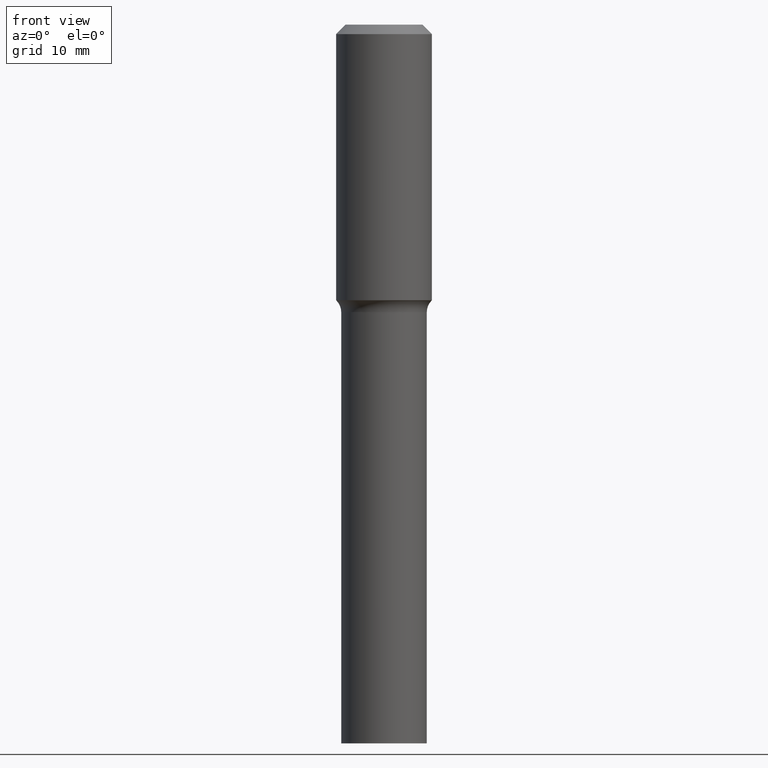
[diagram: clean part render]
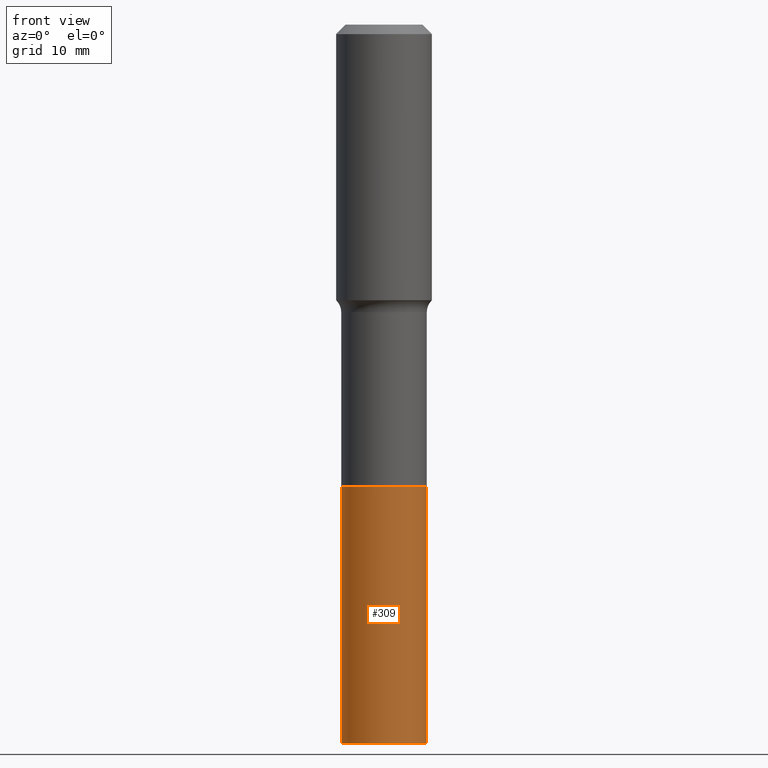
[diagram: same view with one face highlighted and labeled with its STEP entity id]
A machine part, front view. The second image highlights one B-rep face of the part: STEP entity #309.
In plain terms, the highlighted cylindrical surface (partial cylindrical patch) has radius 5.3581 mm, axis along (-0, 0, 1).
Its self-contained STEP definition (entity closure, byte-faithful):
#25 = CARTESIAN_POINT ( 'NONE',  ( -0.2109500000000002207, -8.658876758010429483E-15, -3.543299999999999894 ) ) ;
#42 = VERTEX_POINT ( 'NONE', #62 ) ;
#50 = ORIENTED_EDGE ( 'NONE', *, *, #460, .T. ) ;
#62 = CARTESIAN_POINT ( 'NONE',  ( 0.2109500000000002207, -1.384442180478083622E-14, -3.543299999999999894 ) ) ;
#76 = EDGE_CURVE ( 'NONE', #361, #269, #193, .T. ) ;
#104 = DIRECTION ( 'NONE',  ( 1.000000000000000000, -6.982962677686266711E-15, 0.000000000000000000 ) ) ;
#112 = DIRECTION ( 'NONE',  ( -2.445468806185136597E-29, 3.491481338843145583E-15, 1.000000000000000000 ) ) ;
#149 = DIRECTION ( 'NONE',  ( -2.445468806185136597E-29, 3.491481338843145583E-15, 1.000000000000000000 ) ) ;
#152 = DIRECTION ( 'NONE',  ( -2.445468806185136877E-29, 3.491481338843145188E-15, 1.000000000000000000 ) ) ;
#158 = CARTESIAN_POINT ( 'NONE',  ( -0.2109499999999999986, -8.658876758010431060E-15, -2.275300000000000100 ) ) ;
#160 = CARTESIAN_POINT ( 'NONE',  ( 5.564175174713040318E-29, -7.944167490269808896E-15, -2.275300000000000100 ) ) ;
#162 = VECTOR ( 'NONE', #197, 39.37007874015748143 ) ;
#166 = EDGE_CURVE ( 'NONE', #269, #453, #202, .T. ) ;
#185 = CARTESIAN_POINT ( 'NONE',  ( 0.2109500000000001096, -9.417223467127726461E-15, -2.275300000000000100 ) ) ;
#186 = AXIS2_PLACEMENT_3D ( 'NONE', #498, #149, #307 ) ;
#192 = DIRECTION ( 'NONE',  ( 1.000000000000000000, -6.982962677686262766E-15, 0.000000000000000000 ) ) ;
#193 = LINE ( 'NONE', #512, #440 ) ;
#197 = DIRECTION ( 'NONE',  ( -2.445468806185136877E-29, 3.491481338843145188E-15, 1.000000000000000000 ) ) ;
#202 = CIRCLE ( 'NONE', #451, 0.2109499999999999986 ) ;
#208 = EDGE_CURVE ( 'NONE', #42, #453, #271, .T. ) ;
#242 = FACE_OUTER_BOUND ( 'NONE', #283, .T. ) ;
#269 = VERTEX_POINT ( 'NONE', #158 ) ;
#271 = LINE ( 'NONE', #185, #162 ) ;
#279 = DIRECTION ( 'NONE',  ( -2.445468806185136597E-29, 3.491481338843145583E-15, 1.000000000000000000 ) ) ;
#283 = EDGE_LOOP ( 'NONE', ( #407, #50, #343, #447 ) ) ;
#307 = DIRECTION ( 'NONE',  ( 1.000000000000000000, -6.982962677686269077E-15, 0.000000000000000000 ) ) ;
#309 = ADVANCED_FACE ( 'NONE', ( #242 ), #395, .T. ) ;
#343 = ORIENTED_EDGE ( 'NONE', *, *, #208, .T. ) ;
#361 = VERTEX_POINT ( 'NONE', #25 ) ;
#395 = CYLINDRICAL_SURFACE ( 'NONE', #483, 0.2109500000000001096 ) ;
#407 = ORIENTED_EDGE ( 'NONE', *, *, #76, .F. ) ;
#412 = CARTESIAN_POINT ( 'NONE',  ( 0.2109499999999999986, -9.417223467127726461E-15, -2.275300000000000100 ) ) ;
#425 = CARTESIAN_POINT ( 'NONE',  ( 5.564175174713040318E-29, -7.944167490269808896E-15, -2.275300000000000100 ) ) ;
#440 = VECTOR ( 'NONE', #152, 39.37007874015748143 ) ;
#447 = ORIENTED_EDGE ( 'NONE', *, *, #166, .F. ) ;
#451 = AXIS2_PLACEMENT_3D ( 'NONE', #425, #112, #104 ) ;
#452 = CIRCLE ( 'NONE', #186, 0.2109500000000002207 ) ;
#453 = VERTEX_POINT ( 'NONE', #412 ) ;
#460 = EDGE_CURVE ( 'NONE', #361, #42, #452, .T. ) ;
#483 = AXIS2_PLACEMENT_3D ( 'NONE', #160, #279, #192 ) ;
#498 = CARTESIAN_POINT ( 'NONE',  ( 8.665029620955794069E-29, -1.237136582792291707E-14, -3.543299999999999894 ) ) ;
#512 = CARTESIAN_POINT ( 'NONE',  ( -0.2109500000000001096, -6.445277589183876183E-15, -2.275300000000000100 ) ) ;